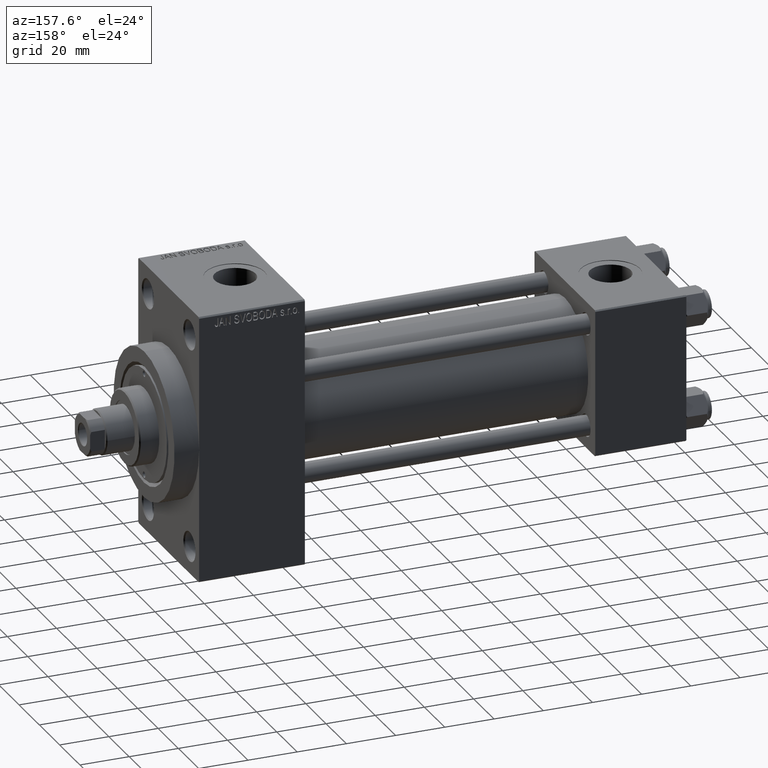
[diagram: clean part render]
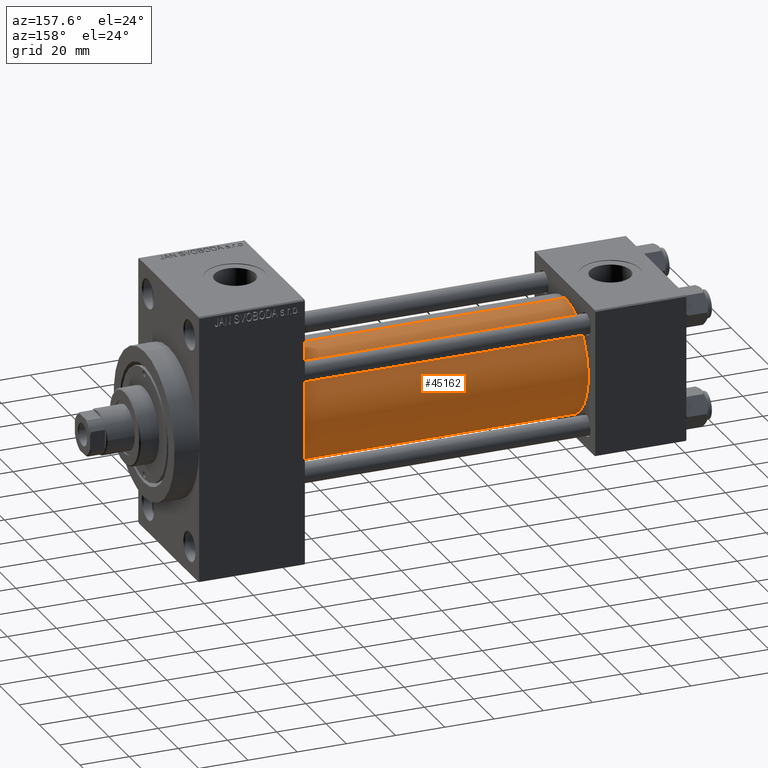
[diagram: same view with one face highlighted and labeled with its STEP entity id]
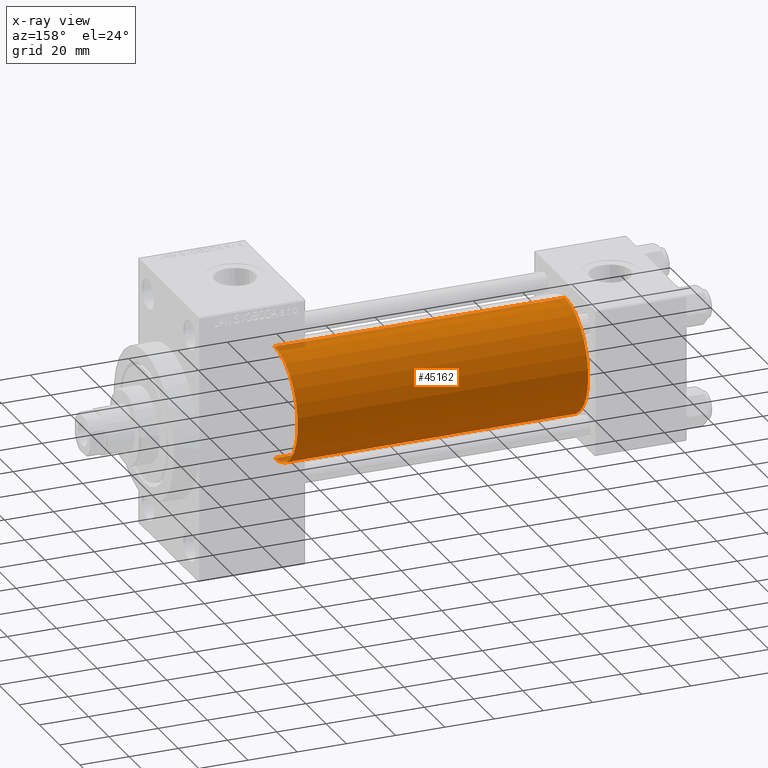
[diagram: x-ray of the same camera — body ghosted, the highlighted face saturated]
A machine part, auxiliary view. The second image highlights one B-rep face of the part: STEP entity #45162.
The next image is the same camera in x-ray: the body ghosted, the highlighted face saturated — about 1% of this face is hidden behind the body in this view.
In plain terms, the highlighted cylindrical surface (partial cylindrical patch) has radius 23 mm, axis along (-1, -0, -0).
Its self-contained STEP definition (entity closure, byte-faithful):
#704 = EDGE_LOOP ( 'NONE', ( #16052, #25430, #6961, #11440 ) ) ;
#819 = EDGE_CURVE ( 'NONE', #44024, #20895, #9947, .T. ) ;
#2908 = CARTESIAN_POINT ( 'NONE',  ( 37.00000000000000711, -2.602085213965210642E-15, 23.00000000000000000 ) ) ;
#3405 = EDGE_CURVE ( 'NONE', #20895, #10603, #17186, .T. ) ;
#5290 = DIRECTION ( 'NONE',  ( 1.000000000000000000, -0.000000000000000000, 0.000000000000000000 ) ) ;
#6645 = CARTESIAN_POINT ( 'NONE',  ( 155.0000000000000000, -2.602085213965210642E-15, 23.00000000000000000 ) ) ;
#6961 = ORIENTED_EDGE ( 'NONE', *, *, #21636, .T. ) ;
#8701 = CARTESIAN_POINT ( 'NONE',  ( 37.00000000000000711, 2.146024240737016609E-16, -23.00000000000000000 ) ) ;
#8893 = CARTESIAN_POINT ( 'NONE',  ( 37.00000000000000711, -2.602085213965210642E-15, 0.000000000000000000 ) ) ;
#8973 = CARTESIAN_POINT ( 'NONE',  ( 155.0000000000000000, -2.602085213965210642E-15, 0.000000000000000000 ) ) ;
#9947 = CIRCLE ( 'NONE', #34474, 23.00000000000000000 ) ;
#10603 = VERTEX_POINT ( 'NONE', #2908 ) ;
#11179 = FACE_OUTER_BOUND ( 'NONE', #704, .T. ) ;
#11440 = ORIENTED_EDGE ( 'NONE', *, *, #3405, .F. ) ;
#16052 = ORIENTED_EDGE ( 'NONE', *, *, #819, .F. ) ;
#17186 = LINE ( 'NONE', #6645, #18349 ) ;
#18349 = VECTOR ( 'NONE', #36148, 1000.000000000000000 ) ;
#20655 = VERTEX_POINT ( 'NONE', #8701 ) ;
#20672 = CARTESIAN_POINT ( 'NONE',  ( 155.0000000000000000, 2.146024240737016609E-16, -23.00000000000000000 ) ) ;
#20895 = VERTEX_POINT ( 'NONE', #42180 ) ;
#21636 = EDGE_CURVE ( 'NONE', #20655, #10603, #34126, .T. ) ;
#23201 = AXIS2_PLACEMENT_3D ( 'NONE', #30110, #40690, #40454 ) ;
#23622 = DIRECTION ( 'NONE',  ( 0.000000000000000000, 0.000000000000000000, -1.000000000000000000 ) ) ;
#23724 = VECTOR ( 'NONE', #34825, 1000.000000000000000 ) ;
#25430 = ORIENTED_EDGE ( 'NONE', *, *, #34705, .T. ) ;
#26039 = CYLINDRICAL_SURFACE ( 'NONE', #23201, 23.00000000000000000 ) ;
#26883 = DIRECTION ( 'NONE',  ( 0.000000000000000000, 0.000000000000000000, 1.000000000000000000 ) ) ;
#27683 = DIRECTION ( 'NONE',  ( 1.000000000000000000, 0.000000000000000000, 0.000000000000000000 ) ) ;
#30110 = CARTESIAN_POINT ( 'NONE',  ( 155.0000000000000000, -2.602085213965210642E-15, 0.000000000000000000 ) ) ;
#31933 = LINE ( 'NONE', #20672, #23724 ) ;
#34126 = CIRCLE ( 'NONE', #42573, 23.00000000000000000 ) ;
#34474 = AXIS2_PLACEMENT_3D ( 'NONE', #8973, #27683, #23622 ) ;
#34705 = EDGE_CURVE ( 'NONE', #44024, #20655, #31933, .T. ) ;
#34825 = DIRECTION ( 'NONE',  ( -1.000000000000000000, -0.000000000000000000, -0.000000000000000000 ) ) ;
#35673 = CARTESIAN_POINT ( 'NONE',  ( 155.0000000000000000, 2.146024240737016609E-16, -23.00000000000000000 ) ) ;
#36148 = DIRECTION ( 'NONE',  ( -1.000000000000000000, -0.000000000000000000, -0.000000000000000000 ) ) ;
#40454 = DIRECTION ( 'NONE',  ( 0.000000000000000000, 0.000000000000000000, 1.000000000000000000 ) ) ;
#40690 = DIRECTION ( 'NONE',  ( -1.000000000000000000, -0.000000000000000000, -0.000000000000000000 ) ) ;
#42180 = CARTESIAN_POINT ( 'NONE',  ( 155.0000000000000000, -2.602085213965210642E-15, 23.00000000000000000 ) ) ;
#42573 = AXIS2_PLACEMENT_3D ( 'NONE', #8893, #5290, #26883 ) ;
#44024 = VERTEX_POINT ( 'NONE', #35673 ) ;
#45162 = ADVANCED_FACE ( 'NONE', ( #11179 ), #26039, .T. ) ;